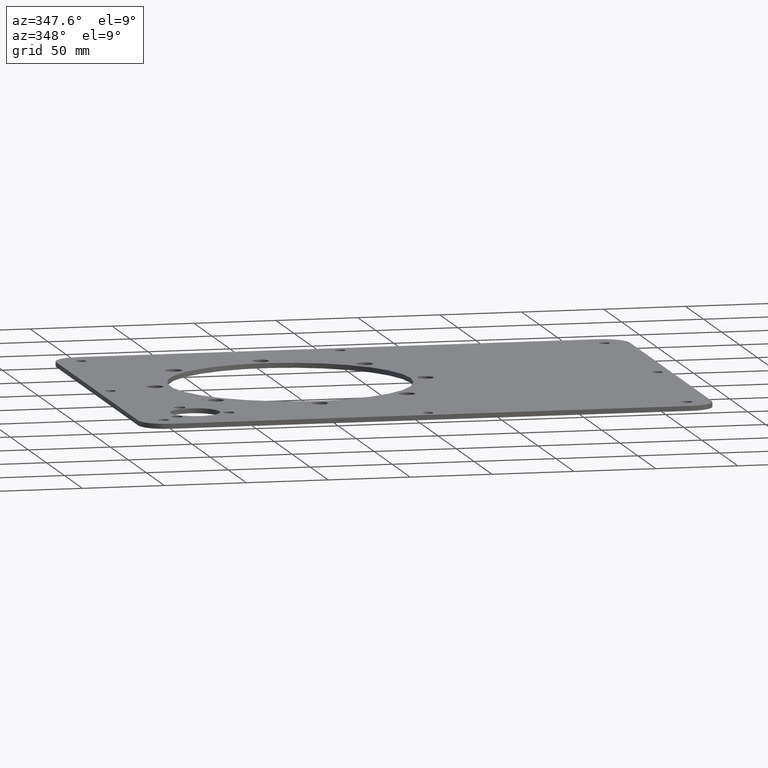
[diagram: clean part render]
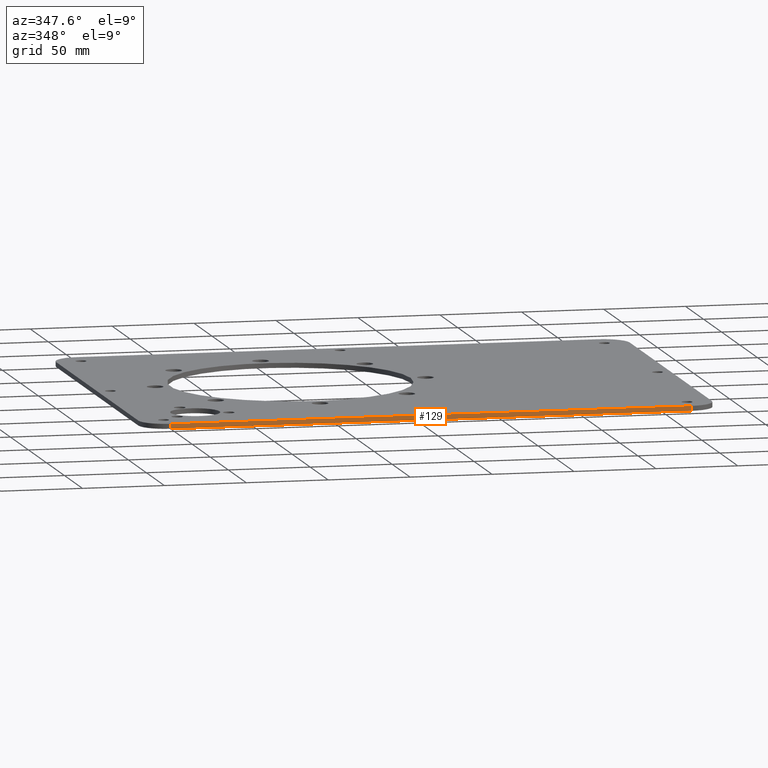
[diagram: same view with one face highlighted and labeled with its STEP entity id]
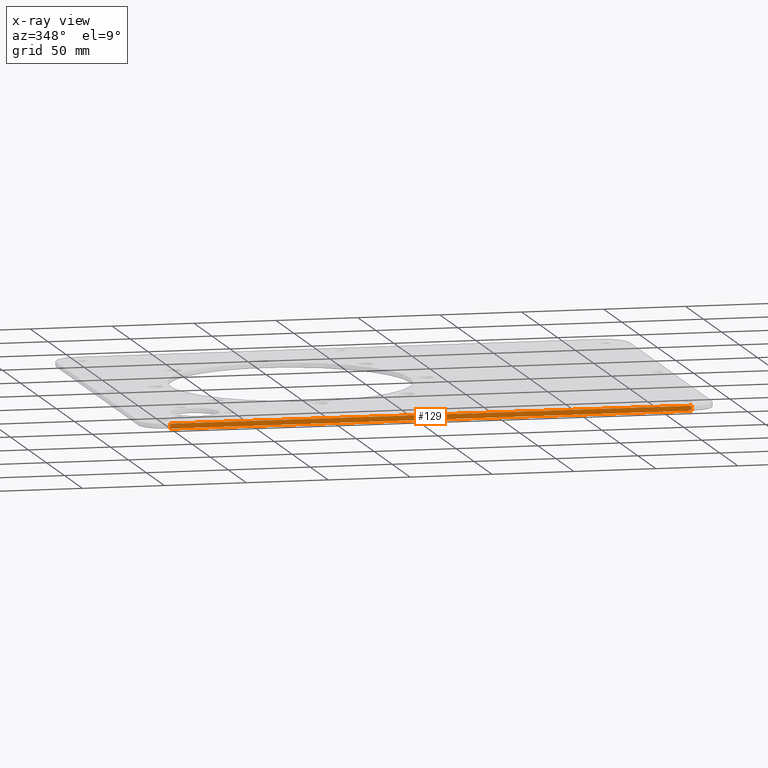
[diagram: x-ray of the same camera — body ghosted, the highlighted face saturated]
A machine part, auxiliary view. The second image highlights one B-rep face of the part: STEP entity #129.
The next image is the same camera in x-ray: the body ghosted, the highlighted face saturated — about 0% of this face is hidden behind the body in this view.
In plain terms, the highlighted planar face has unit normal (0, 1, 0).
Its self-contained STEP definition (entity closure, byte-faithful):
#120=PLANE('',#634);
#129=ADVANCED_FACE('',(#185),#120,.F.);
#185=FACE_OUTER_BOUND('',#195,.T.);
#195=EDGE_LOOP('',(#336,#337,#338,#339));
#293=LINE('',#914,#309);
#294=LINE('',#918,#310);
#295=LINE('',#920,#311);
#296=LINE('',#922,#312);
#309=VECTOR('',#733,1.);
#310=VECTOR('',#738,1.);
#311=VECTOR('',#739,1.);
#312=VECTOR('',#740,1.);
#336=ORIENTED_EDGE('',*,*,#522,.T.);
#337=ORIENTED_EDGE('',*,*,#523,.F.);
#338=ORIENTED_EDGE('',*,*,#524,.F.);
#339=ORIENTED_EDGE('',*,*,#520,.T.);
#458=VERTEX_POINT('',#913);
#459=VERTEX_POINT('',#915);
#460=VERTEX_POINT('',#919);
#461=VERTEX_POINT('',#921);
#520=EDGE_CURVE('',#459,#458,#293,.T.);
#522=EDGE_CURVE('',#458,#460,#294,.T.);
#523=EDGE_CURVE('',#461,#460,#295,.T.);
#524=EDGE_CURVE('',#459,#461,#296,.T.);
#634=AXIS2_PLACEMENT_3D('',#923,#741,#742);
#733=DIRECTION('',(0.,0.,-1.));
#738=DIRECTION('',(1.,0.,0.));
#739=DIRECTION('',(0.,0.,-1.));
#740=DIRECTION('',(1.,0.,0.));
#741=DIRECTION('',(0.,1.,0.));
#742=DIRECTION('',(0.,0.,1.));
#913=CARTESIAN_POINT('',(3841.,-3130.,0.));
#914=CARTESIAN_POINT('',(3841.,-3130.,3.));
#915=CARTESIAN_POINT('',(3841.,-3130.,3.));
#918=CARTESIAN_POINT('',(3841.,-3130.,0.));
#919=CARTESIAN_POINT('',(4159.,-3130.,0.));
#920=CARTESIAN_POINT('',(4159.,-3130.,3.));
#921=CARTESIAN_POINT('',(4159.,-3130.,3.));
#922=CARTESIAN_POINT('',(3841.,-3130.,3.));
#923=CARTESIAN_POINT('',(3841.,-3130.,3.));